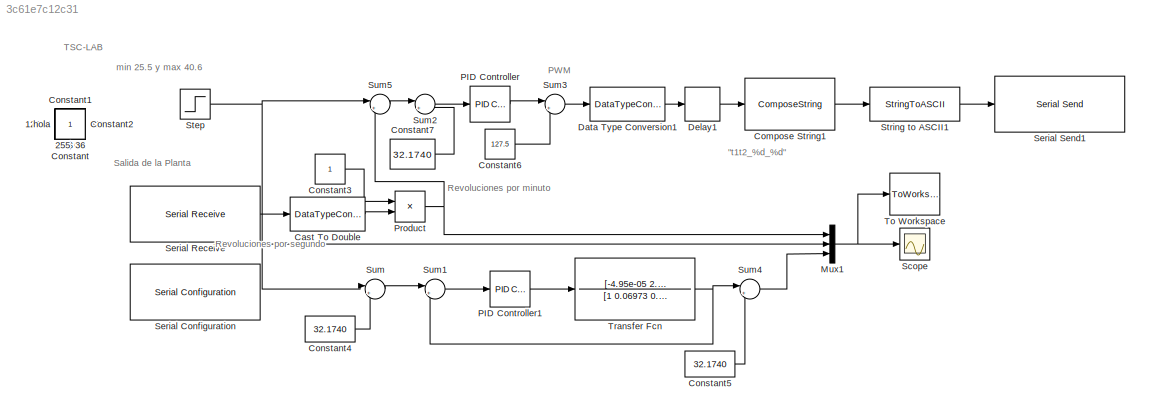
MODEL slx_3c61e7c12c31
KIND model
CONFIG AbsTol = auto
CONFIG EnableMultiTasking = off
CONFIG FixedStep = auto
CONFIG MaxStep = auto
CONFIG MinStep = auto
CONFIG RelTol = 1e-3
CONFIG SampleTimeConstraint = Unconstrained
CONFIG SolverName = VariableStepAuto
CONFIG StartTime = 0.0
CONFIG StopTime = 600
BLOCK [Constant] $
  IOType = siggen
  Value = 36
BLOCK [Constant] ,
  IOType = siggen
  Value = 44
BLOCK [Constant] 0
  IOType = siggen
BLOCK [Constant] 0A
  IOType = siggen
  Value = 10
BLOCK [Constant] 0D
  IOType = siggen
  Value = 13
BLOCK [Constant] 10
  IOType = siggen
BLOCK [Constant] 12345
  IOType = siggen
BLOCK [Constant] 13
  IOType = siggen
  Value = 13
BLOCK [Constant] 255
  IOType = siggen
BLOCK [Constant] 311
  IOType = siggen
BLOCK [Constant] 36
  IOType = siggen
  Value = 36
BLOCK [DataTypeConversion] Cast To Double
  OutDataTypeStr = double
  RndMeth = Floor
  SaturateOnIntegerOverflow = off
BLOCK [ComposeString] Compose String1
  Format = "t1_%d"
  Ports = [1, 1]
BLOCK [Constant] Constant
  IOType = siggen
BLOCK [Constant] Constant1
  IOType = siggen
BLOCK [Constant] Constant2
  IOType = siggen
BLOCK [Constant] Constant3
BLOCK [Constant] Constant4
  Value = 32.1740
BLOCK [Constant] Constant5
  Value = 32.1740
BLOCK [Constant] Constant6
  Value = 127.5
BLOCK [Constant] Constant7
  Value = 32.1740
BLOCK [DataTypeConversion] Data Type Conversion1
  OutDataTypeStr = int32
  RndMeth = Floor
  SaturateOnIntegerOverflow = off
BLOCK [Delay] Delay1
  DelayLength = 1
  InitialCondition = 0
  InputPortMap = u0
  Ports = [1, 1]
BLOCK [Mux] Mux1
  DisplayOption = bar
  Inputs = 3
  Ports = [3, 1]
BLOCK [Reference] PID Controller  REF=pid_lib/PID Controller
  Ports = [1, 1]
  SourceBlock = pid_lib/PID Controller
  SourceProductBaseCode = SL
  SourceType = PID 1dof
BLOCK [Reference] PID Controller1  REF=pid_lib/PID Controller
  Ports = [1, 1]
  SourceBlock = pid_lib/PID Controller
  SourceProductBaseCode = SL
  SourceType = PID 1dof
BLOCK [Product] Product
  Ports = [2, 1]
BLOCK [Scope] Scope
  Floating = off
  NumInputPorts = 1
  Ports = [1]
  ScopeSpecificationString = Simulink.scopes.TimeScopeBlockCfg('CurrentConfiguration', extmgr.ConfigurationSet(extmgr.Configuration('Core','General UI',true),extmgr.Configuration('Core','Source UI',true),extmgr.Configuration('Sources','WiredSimulink',true),extmgr.Configuration('Visuals','Time Domain',true,'SerializedDisplays',{struct('MinYLimReal','-0.43076','MaxYLimReal','50.84504','YLabelReal','','MinYLimMag','0.00000','Max...<+1475ch>
BLOCK [Reference] Serial Configuration  REF=instrumentseriallib/Serial Configuration
  Ports = []
  Priority = -200000
  SourceBlock = instrumentseriallib/Serial Configuration
  SourceProductBaseCode = IC
  SourceType = matlabshared.seriallib.internal.system.SerialConfiguration
BLOCK [Reference] Serial Receive  REF=instrumentseriallib/Serial Receive
  Ports = [0, 1]
  SourceBlock = instrumentseriallib/Serial Receive
  SourceProductBaseCode = IC
  SourceType = matlabshared.seriallib.internal.system.SerialReceive
BLOCK [Reference] Serial Send1  REF=instrumentseriallib/Serial Send
  Ports = [1]
  SourceBlock = instrumentseriallib/Serial Send
  SourceProductBaseCode = IC
  SourceType = matlabshared.seriallib.internal.system.SerialSend
BLOCK [Step] Step
  After = 35
  SampleTime = 0
BLOCK [StringToASCII] String to ASCII1
BLOCK [Sum] Sum
  Inputs = |+-
  Ports = [2, 1]
BLOCK [Sum] Sum1
  Inputs = |+-
  Ports = [2, 1]
BLOCK [Sum] Sum2
  Inputs = |+-
  Ports = [2, 1]
BLOCK [Sum] Sum3
  Inputs = |++
  Ports = [2, 1]
BLOCK [Sum] Sum4
  Inputs = |++
  Ports = [2, 1]
BLOCK [Sum] Sum5
  Inputs = |+-
  Ports = [2, 1]
BLOCK [ToWorkspace] To Workspace
  MaxDataPoints = inf
  Ports = [1]
  SampleTime = -1
  Save2DSignal = 2-D array (concatenate along first dimension)
  VariableName = yout
BLOCK [TransferFcn] Transfer Fcn
  Denominator = [1 0.06973 0.0008075]
  Numerator = [-4.95e-05 2.245e-05]
BLOCK [Constant] hola
  IOType = siggen
ANNOTATION (root): "t1t2_%d_%d"
ANNOTATION (root): PWM
ANNOTATION (root): Revoluciones por minuto
ANNOTATION (root): Revoluciones por segundo
ANNOTATION (root): Salida de la Planta
ANNOTATION (root): TSC-LAB
ANNOTATION (root): min 25.5 y max 40.6
LINE Cast To Double:1 -> Product:2
LINE Compose String1:1 -> String to ASCII1:1
LINE Constant3:1 -> Product:1
LINE Constant4:1 -> Sum:2
LINE Constant5:1 -> Sum4:2
LINE Constant6:1 -> Sum3:2
LINE Constant7:1 -> Sum2:2
LINE Data Type Conversion1:1 -> Delay1:1
LINE Delay1:1 -> Compose String1:1
NET Mux1:1 -> Scope:1, To Workspace:1
LINE PID Controller1:1 -> Transfer Fcn:1
LINE PID Controller:1 -> Sum3:1
NET Product:1 -> Mux1:1, Sum5:2
LINE Serial Receive:1 -> Cast To Double:1
NET Step:1 -> Mux1:2, Sum5:1, Sum:1
LINE String to ASCII1:1 -> Serial Send1:1
LINE Sum1:1 -> PID Controller1:1
LINE Sum2:1 -> PID Controller:1
LINE Sum3:1 -> Data Type Conversion1:1
LINE Sum4:1 -> Mux1:3
LINE Sum5:1 -> Sum2:1
LINE Sum:1 -> Sum1:1
NET Transfer Fcn:1 -> Sum1:2, Sum4:1
note: NET lines group one-source signal fan-out (src -> all destinations, sorted); 1:1 wires keep LINE
